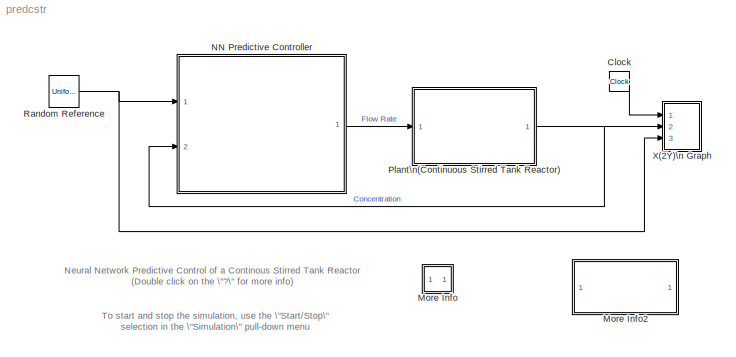
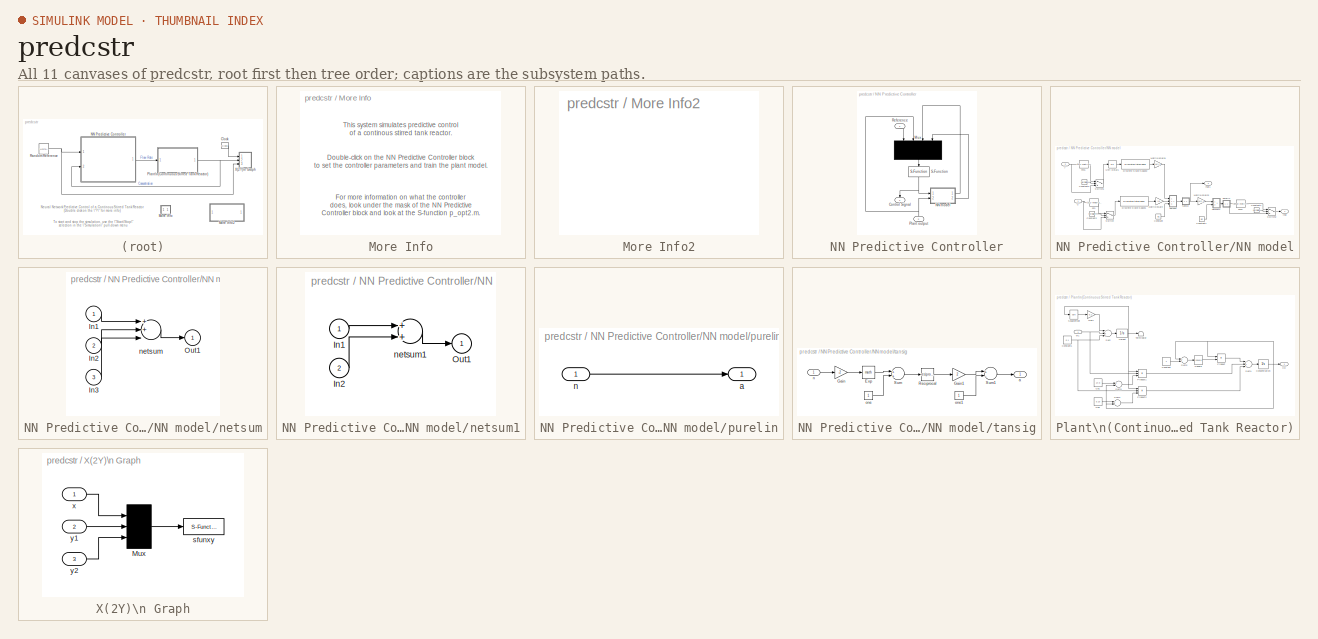
[diagram: thumbnail index - all 11 canvases of the model, root first then tree order]
MODEL predcstr
KIND model
CONFIG AbsTol = 1e-6
CONFIG FixedStep = auto
CONFIG MaxStep = auto
CONFIG MinStep = auto
CONFIG RelTol = 1e-3
CONFIG Solver = ode45
CONFIG SolverMode = SingleTasking
CONFIG StartTime = 0.0
CONFIG StopTime = 120
BLOCK [Clock] Clock
  Decimation = 10
BLOCK [SubSystem] More Info
  MaskDisplay = disp('?')
  MaskIconFrame = on
  MaskIconOpaque = on
  MaskIconRotate = none
  MaskIconUnits = autoscale
  Ports = []
  TreatAsAtomicUnit = off
BLOCK [SubSystem] More Info2
  MaskDisplay = disp('Double click\\nhere for\\nSimulink Help')
  MaskIconFrame = on
  MaskIconOpaque = on
  MaskIconRotate = none
  MaskIconUnits = autoscale
  OpenFcn = simcad(bdroot)
  Ports = []
  TreatAsAtomicUnit = off
BLOCK [SubSystem] NN Predictive Controller
  MaskCallbackString = |||||||||||||||||||||||||||||||||
  MaskDescription = NN Predictive Controller.  You first train a neural network model of the plant to be controlled.  The controller uses the plant model to predict plant performance over a specified time horizon.  An optimization algorithm determines the control signal that optimizes plant performance over this horizon.  Double click the NN Predictive Controller block to train the plant model and set the controller ...<+11ch>
  MaskDisplay = plot([[xl NaN x2]*.9-.075 ], [[yl  NaN y2]*.9-.1 ]);\nplot([[x3]*.9-.075 ], [[y3]*.9-.1 ]);\ntext(x1t,y1t,'Plant');\ntext(x8t,y8t,'Output');\ntext(x2t,y2t,'Reference');\ntext(x3t,y3t,'Control');\ntext(x4t,y4t,'Signal');\ntext(x5t,y5t,'Optim.');\ntext(x6t,y6t,'NN');\ntext(x7t,y7t,'Model');\n
  MaskEnableString = on,on,on,on,on,on,on,on,on,on,on,on,on,on,on,on,on,on,on,on,on,on,on,on,on,on,on,on,on,on,on,on,on,on
  MaskIconFrame = on
  MaskIconOpaque = on
  MaskIconRotate = none
  MaskIconUnits = normalized
  MaskInitialization = xl = [0   .53   .53     .85   .85  .53  .53  NaN .85  .92 .92];\nyl = [.95 .95 1.05  1.05   .82  .82  .95  NaN  .95 .95 .65];\nx2 = [0 .53    NaN .92 1.2 NaN .53 .85 .85 .53 .53 ];\ny2 = [.39 .39   NaN .65 .65 NaN .59 .59 .29 .29  .59];\nx3 = [.67 .67 NaN .64 .67 .70 NaN .53 .4   .4   .53 NaN .46 .53 .46];\ny3 = [.59 .82 NaN .66 .59 .66 NaN .55 .55 .86 .86 NaN  .89 .86 .83];\n\nx1t=.03; y1t=.31;\n...<+131ch>
  MaskPromptString = N2|Nu|Sample time|rho (typically = 0.03)|alpha (typically = 0.001)|Minimization rutine|maxiter|S1|Ni|Nj|sim_file|Training function|Use_Validation|Use_Testing|max_i|min_i|sam_training|epochs|minp|maxp|mint|maxt|Normalize|IW|LW1_2|LW2_1|B1|B2|max_i_int|min_i_int|limit_output|max_output|min_output|Use_Previous_Weights
  MaskStyleString = edit,edit,edit,edit,edit,popup(csrchgol|csrchbac|csrchhyb|csrchbre|csrchcha),edit,edit,edit,edit,edit,popup(trainbfg|trainbr |traincgb|traincgf|traincgp|traingd|traingdm|traingda|traingdx|trainlm |trainoss|trainrp |trainscg),edit,edit,edit,edit,edit,edit,edit,edit,edit,edit,edit,edit,edit,edit,edit,edit,edit,edit,edit,edit,edit,edit
  MaskToolTipString = on,on,on,on,on,on,on,on,on,on,on,on,on,on,on,on,on,on,on,on,on,on,on,on,on,on,on,on,on,on,on,on,on,on
  MaskTunableValueString = on,on,on,on,on,on,on,on,on,on,on,on,on,on,on,on,on,on,on,on,on,on,on,on,on,on,on,on,on,on,on,on,on,on
  MaskType = NN Predictive Controller
  MaskValueString = 7|2|0.2|0.05|0.001|csrchbac|2|7|2|2|cstr|trainlm |1|0|4|0|8000|200|0.02233575679015197|3.977181962055679|19.990542740630676|23.003707300214998|0|[-20.531997924598212 18.706482494882994;0.0041681487931733516 -0.003898180117493663;0.0027271331329927679 -0.0026383962298670975;-4.2884263047654887 -2.5242458681173563;-7.5376751481296909 11.798966620249038;0.12631450792955951 0.63090781487873226;-9.0327...<+635ch>
  MaskVarAliasString = ,,,,,,,,,,,,,,,,,,,,,,,,,,,,,,,,,
  MaskVariables = N2=@1;Nu=@2;Ts=@3;rho=@4;alpha=@5;csrchfun=@6;maxiter=@7;S1=@8;Ni=@9;Nj=@10;sim_file=&11;trainfun=@12;Use_validation=@13;Use_Testing=@14;max_i=@15;min_i=@16;sam_training=@17;epochs=@18;minp=@19;maxp=@20;mint=@21;maxt=@22;Normalize=@23;IW=@24;LW1_2=@25;LW2_1=@26;B1=@27;B2=@28;max_i_int=@29;min_i_int=@30;limit_output=@31;max_output=@32;min_output=@33;Use_Previous_Weights=@34;
  MaskVisibilityString = on,on,on,on,on,on,on,on,on,on,on,on,on,on,on,on,on,on,on,on,on,on,on,on,on,on,on,on,on,on,on,on,on,on
  OpenFcn = nncontrolutil('nnpredict','',gcbh,gcb);
  Ports = [2, 1]
  TreatAsAtomicUnit = off
BLOCK [Outport] NN Predictive Controller/Control Signal
BLOCK [Mux] NN Predictive Controller/Mux
  DisplayOption = signals
  Ports = [4, 1]
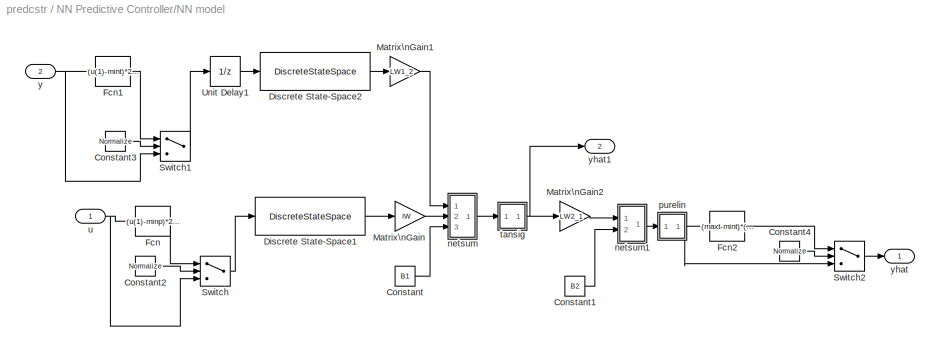
BLOCK [SubSystem] NN Predictive Controller/NN model
  Ports = [2, 2]
  TreatAsAtomicUnit = off
BLOCK [Constant] NN Predictive Controller/NN model/Constant
  Value = B1
BLOCK [Constant] NN Predictive Controller/NN model/Constant1
  Value = B2
BLOCK [Constant] NN Predictive Controller/NN model/Constant2
  Value = Normalize
BLOCK [Constant] NN Predictive Controller/NN model/Constant3
  Value = Normalize
BLOCK [Constant] NN Predictive Controller/NN model/Constant4
  Value = Normalize
BLOCK [DiscreteStateSpace] NN Predictive Controller/NN model/Discrete State-Space1
  A = [0 zeros(1,Ni-2);eye(Ni-2,Ni-1)]
  B = [zeros(double(Ni==1));eye(Ni-1,1)]
  C = [0 zeros(1,Ni-2);eye(Ni-1,Ni-1)]
  D = eye(Ni,1)
  SampleTime = Ts
BLOCK [DiscreteStateSpace] NN Predictive Controller/NN model/Discrete State-Space2
  A = [0 zeros(1,Nj-2);eye(Nj-2,Nj-1)]
  B = [zeros(double(Nj==1));eye(Nj-1,1)]
  C = [0 zeros(1,Nj-2);eye(Nj-1,Nj-1)]
  D = eye(Nj,1)
  SampleTime = Ts
BLOCK [Fcn] NN Predictive Controller/NN model/Fcn
  Expr = (u(1)-minp)*2/(maxp-minp) - 1
BLOCK [Fcn] NN Predictive Controller/NN model/Fcn1
  Expr = (u(1)-mint)*2/(maxt-mint) - 1
BLOCK [Fcn] NN Predictive Controller/NN model/Fcn2
  Expr = (maxt-mint)*(u(1)+1)/2 + mint
BLOCK [Gain] NN Predictive Controller/NN model/Matrix\nGain
  Gain = IW
  Multiplication = Matrix(K*u)
BLOCK [Gain] NN Predictive Controller/NN model/Matrix\nGain1
  Gain = LW1_2
  Multiplication = Matrix(K*u)
BLOCK [Gain] NN Predictive Controller/NN model/Matrix\nGain2
  Gain = LW2_1
  Multiplication = Matrix(K*u)
BLOCK [Switch] NN Predictive Controller/NN model/Switch
  Threshold = 0.5
  ZeroCross = off
BLOCK [Switch] NN Predictive Controller/NN model/Switch1
  Threshold = 0.5
  ZeroCross = off
BLOCK [Switch] NN Predictive Controller/NN model/Switch2
  Threshold = 0.5
  ZeroCross = off
BLOCK [UnitDelay] NN Predictive Controller/NN model/Unit Delay1
  SampleTime = Ts
BLOCK [SubSystem] NN Predictive Controller/NN model/netsum
  MaskDisplay = disp('+')
  MaskIconFrame = on
  MaskIconOpaque = on
  MaskIconRotate = none
  MaskIconUnits = autoscale
  Ports = [3, 1]
  TreatAsAtomicUnit = off
BLOCK [Inport] NN Predictive Controller/NN model/netsum/In1
BLOCK [Inport] NN Predictive Controller/NN model/netsum/In2
  Port = 2
BLOCK [Inport] NN Predictive Controller/NN model/netsum/In3
  Port = 3
BLOCK [Outport] NN Predictive Controller/NN model/netsum/Out1
BLOCK [Sum] NN Predictive Controller/NN model/netsum/netsum
  Inputs = 3
  Ports = [3, 1]
BLOCK [SubSystem] NN Predictive Controller/NN model/netsum1
  MaskDisplay = disp('+')
  MaskIconFrame = on
  MaskIconOpaque = on
  MaskIconRotate = none
  MaskIconUnits = autoscale
  Ports = [2, 1]
  TreatAsAtomicUnit = off
BLOCK [Inport] NN Predictive Controller/NN model/netsum1/In1
BLOCK [Inport] NN Predictive Controller/NN model/netsum1/In2
  Port = 2
BLOCK [Outport] NN Predictive Controller/NN model/netsum1/Out1
BLOCK [Sum] NN Predictive Controller/NN model/netsum1/netsum1
  Inputs = 2
  Ports = [2, 1]
BLOCK [SubSystem] NN Predictive Controller/NN model/purelin
  MaskDisplay = plot([-1 1],[0 0],[-1 1],[-1 1])
  MaskIconFrame = on
  MaskIconOpaque = on
  MaskIconRotate = none
  MaskIconUnits = autoscale
  Ports = [1, 1]
  TreatAsAtomicUnit = off
BLOCK [Outport] NN Predictive Controller/NN model/purelin/a
BLOCK [Inport] NN Predictive Controller/NN model/purelin/n
BLOCK [SubSystem] NN Predictive Controller/NN model/tansig
  MaskDisplay = plot([-1 1],[0 0],[-1 -.9 -.8 -.7 -.6 -.5 -.4 -.3 -.2 -.1 0 .1 .2 .3 .4 .5 .6 .7 .8 .9 1],2./(1+exp(-8*[-1 -.9 -.8 -.7 -.6 -.5 -.4 -.3 -.2 -.1 0 .1 .2 .3 .4 .5 .6 .7 .8 .9 1]))-1)
  MaskIconFrame = on
  MaskIconOpaque = on
  MaskIconRotate = none
  MaskIconUnits = autoscale
  Ports = [1, 1]
  TreatAsAtomicUnit = off
BLOCK [Math] NN Predictive Controller/NN model/tansig/Exp
  MaskIconFrame = on
  MaskIconOpaque = on
  MaskIconRotate = none
  MaskIconUnits = autoscale
  Ports = [1, 1]
BLOCK [Gain] NN Predictive Controller/NN model/tansig/Gain
  Gain = -2
BLOCK [Gain] NN Predictive Controller/NN model/tansig/Gain1
  Gain = 2
BLOCK [Math] NN Predictive Controller/NN model/tansig/Reciprocal
  MaskIconFrame = on
  MaskIconOpaque = on
  MaskIconRotate = none
  MaskIconUnits = autoscale
  Operator = reciprocal
  Ports = [1, 1]
BLOCK [Sum] NN Predictive Controller/NN model/tansig/Sum
  Ports = [2, 1]
BLOCK [Sum] NN Predictive Controller/NN model/tansig/Sum1
  Inputs = +-
  Ports = [2, 1]
BLOCK [Outport] NN Predictive Controller/NN model/tansig/a
BLOCK [Inport] NN Predictive Controller/NN model/tansig/n
BLOCK [Constant] NN Predictive Controller/NN model/tansig/one
BLOCK [Constant] NN Predictive Controller/NN model/tansig/one1
BLOCK [Inport] NN Predictive Controller/NN model/u
BLOCK [Inport] NN Predictive Controller/NN model/y
  Port = 2
BLOCK [Outport] NN Predictive Controller/NN model/yhat
BLOCK [Outport] NN Predictive Controller/NN model/yhat1
  Port = 2
BLOCK [Inport] NN Predictive Controller/Plant output
  Port = 2
BLOCK [Inport] NN Predictive Controller/Reference
BLOCK [S-Function] NN Predictive Controller/S-Function
  FunctionName = predopt
  Parameters = N2,Ts,Nu,maxiter,csrchfun,rho,alpha,S1,IW,LW1_2,LW2_1,B1,B2,Ni,Nj,min_i,max_i,minp,maxp,mint,maxt,Normalize
  Ports = [1, 1]
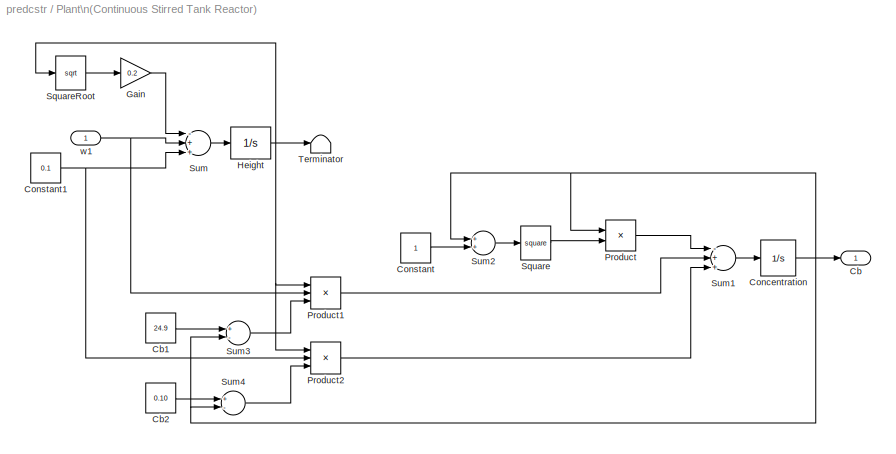
BLOCK [SubSystem] Plant\n(Continuous Stirred Tank Reactor)
  MaskDisplay = plot([[xl NaN x2 NaN x3]*.9-.075 ], [[yl  NaN y2 NaN y3]*.9-.1 ]);\n
  MaskIconFrame = on
  MaskIconOpaque = on
  MaskIconRotate = none
  MaskIconUnits = normalized
  MaskInitialization = xl = [0    .45  .45  NaN   .3   .3  1.   1.    NaN ];\nyl = [1   1    .7    NaN   .8   .2    .2   .8  NaN  ]+.1;\nx2 = [.85 .85   1.2   NaN .8 .85 .9 NaN .4 .45 .5 ];\ny2 = [.7   1      1      NaN .8 .7   .8 NaN  .8 .7 .8]+.1;\nx3 = [.3 1 NaN .8 .8 1.1 NaN 1 1.1 1];\ny3 = [.6 .6 NaN .2 .1 .1 NaN .15 .1 .05]+.1;\nt=(0:24)/24*2*pi;\nxs = .07*cos(t)+.9;\nys = .07*sin(t)+.75;\n\n
  MaskType = Continuous Stirred Tank Reactor
  Ports = [1, 1]
  TreatAsAtomicUnit = off
BLOCK [Outport] Plant\n(Continuous Stirred Tank Reactor)/Cb
BLOCK [Constant] Plant\n(Continuous Stirred Tank Reactor)/Cb1
  Value = 24.9
BLOCK [Constant] Plant\n(Continuous Stirred Tank Reactor)/Cb2
  Value = 0.10
BLOCK [Integrator] Plant\n(Continuous Stirred Tank Reactor)/Concentration
  InitialCondition = 22
  LowerSaturationLimit = 0
  Ports = [1, 1]
  ZeroCross = off
BLOCK [Constant] Plant\n(Continuous Stirred Tank Reactor)/Constant
BLOCK [Constant] Plant\n(Continuous Stirred Tank Reactor)/Constant1
  Value = 0.1
BLOCK [Gain] Plant\n(Continuous Stirred Tank Reactor)/Gain
  Gain = 0.2
BLOCK [Integrator] Plant\n(Continuous Stirred Tank Reactor)/Height
  InitialCondition = 30
  LimitOutput = on
  LowerSaturationLimit = 1
  Ports = [1, 1]
  ZeroCross = off
BLOCK [Product] Plant\n(Continuous Stirred Tank Reactor)/Product
  Inputs = */
  Ports = [2, 1]
BLOCK [Product] Plant\n(Continuous Stirred Tank Reactor)/Product1
  Inputs = /**
  Ports = [3, 1]
BLOCK [Product] Plant\n(Continuous Stirred Tank Reactor)/Product2
  Inputs = /**
  Ports = [3, 1]
BLOCK [Math] Plant\n(Continuous Stirred Tank Reactor)/Square
  Operator = square
  Ports = [1, 1]
BLOCK [Math] Plant\n(Continuous Stirred Tank Reactor)/SquareRoot
  Operator = sqrt
  Ports = [1, 1]
BLOCK [Sum] Plant\n(Continuous Stirred Tank Reactor)/Sum
  Inputs = -++
  Ports = [3, 1]
BLOCK [Sum] Plant\n(Continuous Stirred Tank Reactor)/Sum1
  Inputs = -++
  Ports = [3, 1]
BLOCK [Sum] Plant\n(Continuous Stirred Tank Reactor)/Sum2
  Ports = [2, 1]
BLOCK [Sum] Plant\n(Continuous Stirred Tank Reactor)/Sum3
  Inputs = +-
  Ports = [2, 1]
BLOCK [Sum] Plant\n(Continuous Stirred Tank Reactor)/Sum4
  Inputs = +-
  Ports = [2, 1]
BLOCK [Terminator] Plant\n(Continuous Stirred Tank Reactor)/Terminator
BLOCK [Inport] Plant\n(Continuous Stirred Tank Reactor)/w1
BLOCK [UniformRandomNumber] Random Reference
  Maximum = 23
  Minimum = 20
  SampleTime = 20
  Seed = round(now)
BLOCK [SubSystem] X(2Y)\n Graph
  CopyFcn = sfunxy2([],[],[],'CopyBlock')
  DeleteFcn = sfunxy2([],[],[],'DeleteBlock')
  LoadFcn = sfunxy2([],[],[],'LoadBlock')
  MaskCallbackString = ||||
  MaskDescription = X(2Y) scope using MATLAB graph window.  First input is used as time base.  Enter plotting ranges.
  MaskDisplay = plot([.05 .95 .95 .05 .05],[.45 .45 .95 .95 .45], 0.5+cos(0:0.1:2*pi)*0.3,0.7+sin(0:0.1:2*pi)*0.2)
  MaskEnableString = on,on,on,on,on
  MaskHelp = This block can be used to explore limit cycles. Look at the m-file sfunxy.m to see how it works.
  MaskIconFrame = on
  MaskIconOpaque = on
  MaskIconRotate = none
  MaskIconUnits = normalized
  MaskPromptString = x-min:|x-max:|y-min:|y-max:|Sample time:
  MaskSelfModifiable = on
  MaskStyleString = edit,edit,edit,edit,edit
  MaskToolTipString = on,on,on,on,on
  MaskTunableValueString = on,on,on,on,on
  MaskType = X(2Y) scope.
  MaskValueString = 0|5|21|22|-1
  MaskVarAliasString = ,,,,
  MaskVariables = xmin=@1;xmax=@2;ymin=@3;ymax=@4;st=@5;
  MaskVisibilityString = on,on,on,on,on
  NameChangeFcn = sfunxy2([],[],[],'NameChange')
  Ports = [3]
  StartFcn = sfunxy2([],[],[],'Start')
  StopFcn = sfunxy2([],[],[],'Stop')
  TreatAsAtomicUnit = off
BLOCK [Mux] X(2Y)\n Graph/Mux
  Inputs = 3
  Ports = [3, 1]
BLOCK [S-Function] X(2Y)\n Graph/sfunxy
  FunctionName = sfunxy2
  Parameters = [xmin xmax ymin ymax], st
  Ports = [1]
BLOCK [Inport] X(2Y)\n Graph/x
BLOCK [Inport] X(2Y)\n Graph/y1
  Port = 2
BLOCK [Inport] X(2Y)\n Graph/y2
  Port = 3
ANNOTATION (root): Neural Network Predictive Control of a Continous Stirred Tank Reactor\n(Double click on the \"?\" for more info)
ANNOTATION (root): To start and stop the simulation, use the \"Start/Stop\"\nselection in the \"Simulation\" pull-down menu
ANNOTATION More Info: Double-click on the NN Predictive Controller block\nto set the controller parameters and train the plant model.
ANNOTATION More Info: For more information on what the controller \ndoes, look under the mask of the NN Predictive \nController block and look at the S-function p_opt2.m.
ANNOTATION More Info: This system simulates predictive control\nof a continous stirred tank reactor.
LINE Clock:1 -> X(2Y)\n Graph:1
LINE NN Predictive Controller/Mux:1 -> NN Predictive Controller/S-Function:1
LINE NN Predictive Controller/NN model/Constant1:1 -> NN Predictive Controller/NN model/netsum1:2
LINE NN Predictive Controller/NN model/Constant2:1 -> NN Predictive Controller/NN model/Switch:2
LINE NN Predictive Controller/NN model/Constant3:1 -> NN Predictive Controller/NN model/Switch1:2
LINE NN Predictive Controller/NN model/Constant4:1 -> NN Predictive Controller/NN model/Switch2:2
LINE NN Predictive Controller/NN model/Constant:1 -> NN Predictive Controller/NN model/netsum:3
LINE NN Predictive Controller/NN model/Discrete State-Space1:1 -> NN Predictive Controller/NN model/Matrix\nGain:1
LINE NN Predictive Controller/NN model/Discrete State-Space2:1 -> NN Predictive Controller/NN model/Matrix\nGain1:1
LINE NN Predictive Controller/NN model/Fcn1:1 -> NN Predictive Controller/NN model/Switch1:1
LINE NN Predictive Controller/NN model/Fcn2:1 -> NN Predictive Controller/NN model/Switch2:1
LINE NN Predictive Controller/NN model/Fcn:1 -> NN Predictive Controller/NN model/Switch:1
LINE NN Predictive Controller/NN model/Matrix\nGain1:1 -> NN Predictive Controller/NN model/netsum:1
LINE NN Predictive Controller/NN model/Matrix\nGain2:1 -> NN Predictive Controller/NN model/netsum1:1
LINE NN Predictive Controller/NN model/Matrix\nGain:1 -> NN Predictive Controller/NN model/netsum:2
LINE NN Predictive Controller/NN model/Switch1:1 -> NN Predictive Controller/NN model/Unit Delay1:1
LINE NN Predictive Controller/NN model/Switch2:1 -> NN Predictive Controller/NN model/yhat:1
LINE NN Predictive Controller/NN model/Switch:1 -> NN Predictive Controller/NN model/Discrete State-Space1:1
LINE NN Predictive Controller/NN model/Unit Delay1:1 -> NN Predictive Controller/NN model/Discrete State-Space2:1
LINE NN Predictive Controller/NN model/netsum/In1:1 -> NN Predictive Controller/NN model/netsum/netsum:1
LINE NN Predictive Controller/NN model/netsum/In2:1 -> NN Predictive Controller/NN model/netsum/netsum:2
LINE NN Predictive Controller/NN model/netsum/In3:1 -> NN Predictive Controller/NN model/netsum/netsum:3
LINE NN Predictive Controller/NN model/netsum/netsum:1 -> NN Predictive Controller/NN model/netsum/Out1:1
LINE NN Predictive Controller/NN model/netsum1/In1:1 -> NN Predictive Controller/NN model/netsum1/netsum1:1
LINE NN Predictive Controller/NN model/netsum1/In2:1 -> NN Predictive Controller/NN model/netsum1/netsum1:2
LINE NN Predictive Controller/NN model/netsum1/netsum1:1 -> NN Predictive Controller/NN model/netsum1/Out1:1
LINE NN Predictive Controller/NN model/netsum1:1 -> NN Predictive Controller/NN model/purelin:1
LINE NN Predictive Controller/NN model/netsum:1 -> NN Predictive Controller/NN model/tansig:1
LINE NN Predictive Controller/NN model/purelin/n:1 -> NN Predictive Controller/NN model/purelin/a:1
NET NN Predictive Controller/NN model/purelin:1 -> NN Predictive Controller/NN model/Fcn2:1, NN Predictive Controller/NN model/Switch2:3
LINE NN Predictive Controller/NN model/tansig/Exp:1 -> NN Predictive Controller/NN model/tansig/Sum:1
LINE NN Predictive Controller/NN model/tansig/Gain1:1 -> NN Predictive Controller/NN model/tansig/Sum1:1
LINE NN Predictive Controller/NN model/tansig/Gain:1 -> NN Predictive Controller/NN model/tansig/Exp:1
LINE NN Predictive Controller/NN model/tansig/Reciprocal:1 -> NN Predictive Controller/NN model/tansig/Gain1:1
LINE NN Predictive Controller/NN model/tansig/Sum1:1 -> NN Predictive Controller/NN model/tansig/a:1
LINE NN Predictive Controller/NN model/tansig/Sum:1 -> NN Predictive Controller/NN model/tansig/Reciprocal:1
LINE NN Predictive Controller/NN model/tansig/n:1 -> NN Predictive Controller/NN model/tansig/Gain:1
LINE NN Predictive Controller/NN model/tansig/one1:1 -> NN Predictive Controller/NN model/tansig/Sum1:2
LINE NN Predictive Controller/NN model/tansig/one:1 -> NN Predictive Controller/NN model/tansig/Sum:2
NET NN Predictive Controller/NN model/tansig:1 -> NN Predictive Controller/NN model/Matrix\nGain2:1, NN Predictive Controller/NN model/yhat1:1
NET NN Predictive Controller/NN model/u:1 -> NN Predictive Controller/NN model/Fcn:1, NN Predictive Controller/NN model/Switch:3
NET NN Predictive Controller/NN model/y:1 -> NN Predictive Controller/NN model/Fcn1:1, NN Predictive Controller/NN model/Switch1:3
LINE NN Predictive Controller/NN model:1 -> NN Predictive Controller/Mux:3
LINE NN Predictive Controller/NN model:2 -> NN Predictive Controller/Mux:4
NET NN Predictive Controller/Plant output:1 -> NN Predictive Controller/Mux:2, NN Predictive Controller/NN model:2
LINE NN Predictive Controller/Reference:1 -> NN Predictive Controller/Mux:1
NET NN Predictive Controller/S-Function:1 -> NN Predictive Controller/Control Signal:1, NN Predictive Controller/NN model:1
LINE NN Predictive Controller:1 -> Plant\n(Continuous Stirred Tank Reactor):1
LINE Plant\n(Continuous Stirred Tank Reactor)/Cb1:1 -> Plant\n(Continuous Stirred Tank Reactor)/Sum3:1
LINE Plant\n(Continuous Stirred Tank Reactor)/Cb2:1 -> Plant\n(Continuous Stirred Tank Reactor)/Sum4:1
NET Plant\n(Continuous Stirred Tank Reactor)/Concentration:1 -> Plant\n(Continuous Stirred Tank Reactor)/Cb:1, Plant\n(Continuous Stirred Tank Reactor)/Product:1, Plant\n(Continuous Stirred Tank Reactor)/Sum2:1, Plant\n(Continuous Stirred Tank Reactor)/Sum3:2, Plant\n(Continuous Stirred Tank Reactor)/Sum4:2
NET Plant\n(Continuous Stirred Tank Reactor)/Constant1:1 -> Plant\n(Continuous Stirred Tank Reactor)/Product2:2, Plant\n(Continuous Stirred Tank Reactor)/Sum:3
LINE Plant\n(Continuous Stirred Tank Reactor)/Constant:1 -> Plant\n(Continuous Stirred Tank Reactor)/Sum2:2
LINE Plant\n(Continuous Stirred Tank Reactor)/Gain:1 -> Plant\n(Continuous Stirred Tank Reactor)/Sum:1
NET Plant\n(Continuous Stirred Tank Reactor)/Height:1 -> Plant\n(Continuous Stirred Tank Reactor)/Product1:1, Plant\n(Continuous Stirred Tank Reactor)/Product2:1, Plant\n(Continuous Stirred Tank Reactor)/SquareRoot:1, Plant\n(Continuous Stirred Tank Reactor)/Terminator:1
LINE Plant\n(Continuous Stirred Tank Reactor)/Product1:1 -> Plant\n(Continuous Stirred Tank Reactor)/Sum1:2
LINE Plant\n(Continuous Stirred Tank Reactor)/Product2:1 -> Plant\n(Continuous Stirred Tank Reactor)/Sum1:3
LINE Plant\n(Continuous Stirred Tank Reactor)/Product:1 -> Plant\n(Continuous Stirred Tank Reactor)/Sum1:1
LINE Plant\n(Continuous Stirred Tank Reactor)/Square:1 -> Plant\n(Continuous Stirred Tank Reactor)/Product:2
LINE Plant\n(Continuous Stirred Tank Reactor)/SquareRoot:1 -> Plant\n(Continuous Stirred Tank Reactor)/Gain:1
LINE Plant\n(Continuous Stirred Tank Reactor)/Sum1:1 -> Plant\n(Continuous Stirred Tank Reactor)/Concentration:1
LINE Plant\n(Continuous Stirred Tank Reactor)/Sum2:1 -> Plant\n(Continuous Stirred Tank Reactor)/Square:1
LINE Plant\n(Continuous Stirred Tank Reactor)/Sum3:1 -> Plant\n(Continuous Stirred Tank Reactor)/Product1:3
LINE Plant\n(Continuous Stirred Tank Reactor)/Sum4:1 -> Plant\n(Continuous Stirred Tank Reactor)/Product2:3
LINE Plant\n(Continuous Stirred Tank Reactor)/Sum:1 -> Plant\n(Continuous Stirred Tank Reactor)/Height:1
NET Plant\n(Continuous Stirred Tank Reactor)/w1:1 -> Plant\n(Continuous Stirred Tank Reactor)/Product1:2, Plant\n(Continuous Stirred Tank Reactor)/Sum:2
NET Plant\n(Continuous Stirred Tank Reactor):1 -> NN Predictive Controller:2, X(2Y)\n Graph:2
NET Random Reference:1 -> NN Predictive Controller:1, X(2Y)\n Graph:3
LINE X(2Y)\n Graph/Mux:1 -> X(2Y)\n Graph/sfunxy:1
LINE X(2Y)\n Graph/x:1 -> X(2Y)\n Graph/Mux:1
LINE X(2Y)\n Graph/y1:1 -> X(2Y)\n Graph/Mux:2
LINE X(2Y)\n Graph/y2:1 -> X(2Y)\n Graph/Mux:3
note: NET lines group one-source signal fan-out (src -> all destinations, sorted); 1:1 wires keep LINE
